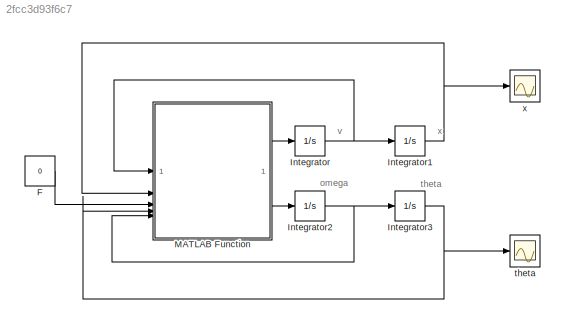
MODEL slx_2fcc3d93f6c7
KIND model
CONFIG AbsTol = auto
CONFIG EnableMultiTasking = off
CONFIG FixedStep = 0.01
CONFIG MaxStep = auto
CONFIG MinStep = auto
CONFIG RelTol = 1e-3
CONFIG SampleTimeConstraint = Unconstrained
CONFIG SolverName = FixedStepAuto
CONFIG StartTime = 0.0
CONFIG StopTime = 20
BLOCK [Constant] F
  Value = 0
BLOCK [Integrator] Integrator
BLOCK [Integrator] Integrator1
BLOCK [Integrator] Integrator2
BLOCK [Integrator] Integrator3
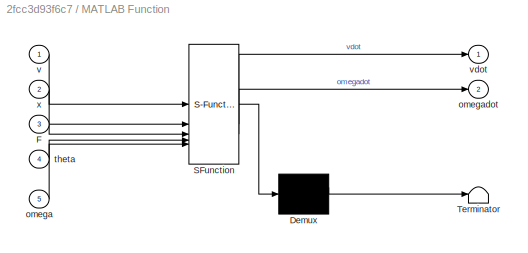
BLOCK [SubSystem] MATLAB Function
  ErrorFcn = Stateflow.Translate.translate
  PermitHierarchicalResolution = ExplicitOnly
  SFBlockType = MATLAB Function
  TreatAsAtomicUnit = on
BLOCK [Demux] MATLAB Function/ Demux 
  Outputs = 1
BLOCK [S-Function] MATLAB Function/ SFunction 
  EnableBusSupport = on
  FunctionName = sf_sfun
  PortCounts = [5 3]
  SFcnIsStateOwnerBlock = off
  SFunctionDeploymentMode = off
  Tag = Stateflow S-Function 2
BLOCK [Terminator] MATLAB Function/ Terminator 
BLOCK [Inport] MATLAB Function/F
  Port = 3
BLOCK [Inport] MATLAB Function/omega
  Port = 5
BLOCK [Outport] MATLAB Function/omegadot
  Port = 2
BLOCK [Inport] MATLAB Function/theta
  Port = 4
BLOCK [Inport] MATLAB Function/v
BLOCK [Outport] MATLAB Function/vdot
BLOCK [Inport] MATLAB Function/x
  Port = 2
BLOCK [Scope] theta
  Floating = off
  NumInputPorts = 1
  ScopeSpecificationString = Simulink.scopes.TimeScopeBlockCfg('CurrentConfiguration', extmgr.ConfigurationSet(extmgr.Configuration('Core','General UI',true),extmgr.Configuration('Core','Source UI',true),extmgr.Configuration('Sources','WiredSimulink',true,'DataLoggingVariableName','ScopeData1'),extmgr.Configuration('Visuals','Time Domain',true,'SerializedDisplays',{struct('MinYLimReal','-1.00000','MaxYLimReal','1.00000','YLab...<+2215ch>
BLOCK [Scope] x
  Floating = off
  NumInputPorts = 1
  ScopeSpecificationString = Simulink.scopes.TimeScopeBlockCfg('CurrentConfiguration', extmgr.ConfigurationSet(extmgr.Configuration('Core','General UI',true),extmgr.Configuration('Core','Source UI',true),extmgr.Configuration('Sources','WiredSimulink',true),extmgr.Configuration('Visuals','Time Domain',true,'SerializedDisplays',{struct('MinYLimReal','-1.00000','MaxYLimReal','1.00000','YLabelReal','','MinYLimMag','0.00000','MaxY...<+2177ch>
ANNOTATION (root): omega
ANNOTATION (root): theta
ANNOTATION (root): v
ANNOTATION (root): x
LINE F:1 -> MATLAB Function:3
NET Integrator1:1 -> MATLAB Function:2, x:1
NET Integrator2:1 -> Integrator3:1, MATLAB Function:5
NET Integrator3:1 -> MATLAB Function:4, theta:1
NET Integrator:1 -> Integrator1:1, MATLAB Function:1
LINE MATLAB Function:1 -> Integrator:1
LINE MATLAB Function:2 -> Integrator2:1
note: NET lines group one-source signal fan-out (src -> all destinations, sorted); 1:1 wires keep LINE
CHART MATLAB Function states=1 transitions=1
  STATE_LABEL 'eML_blk_kernel()'
  STATE_LABEL 'SCRIPT:\nfunction [vdot,omegadot] = fcn(v,x,F,theta,omega)\n\nm = 0.2;\nM = 0.4;\nl = 0.3;\ng = 9.8;\n\nbtheta = 0.2;\nbx = 0.2;\n\nct = cos(theta);\nst = sin(theta);\n\nA = [ct , 4*l/3 ; M+m  ,m*l*ct];\nb = [st*g-btheta*omega ; m*l*st*omega^2+F-bx*v];\n\nsol = A\\b;\n\nvdot     = sol(1);\nomegadot = sol(2);\n\n'
CHART  states=0 transitions=0
